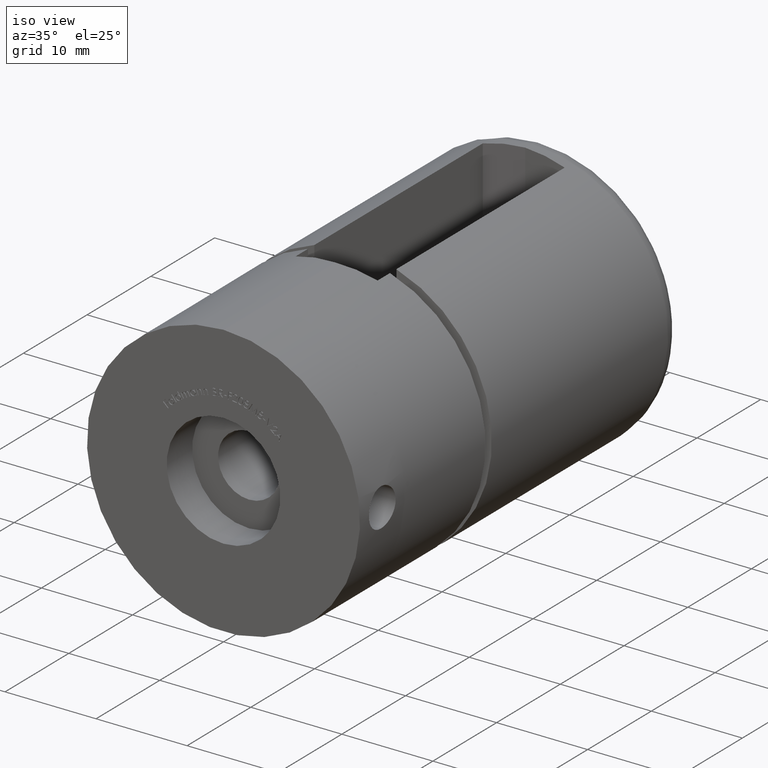
[diagram: clean part render]
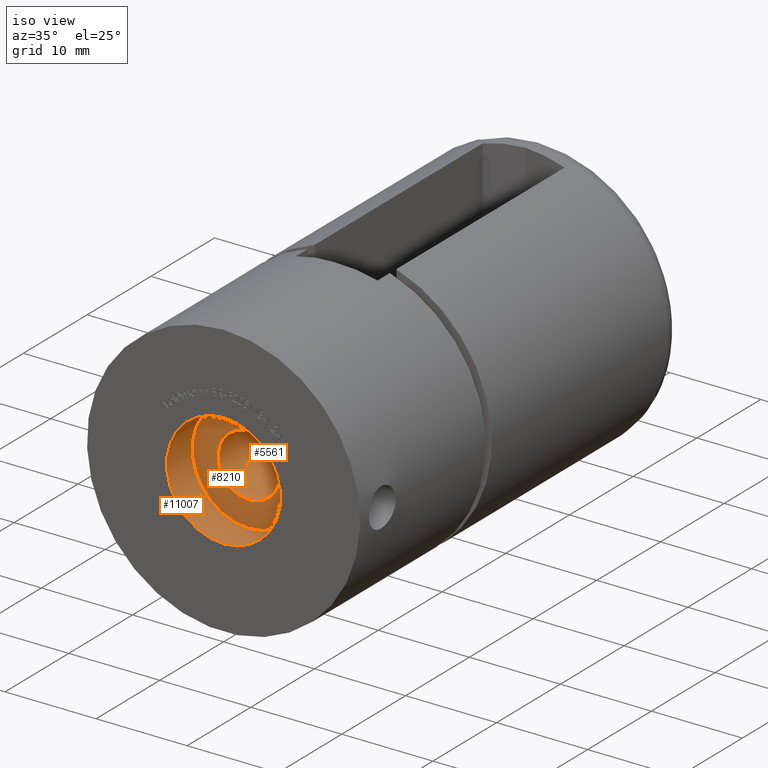
[diagram: same view with one multi-face feature highlighted, each face labeled with its STEP entity id]
A machine part, iso view. The highlighted faces form ONE feature: a stepped (counterbored) hole: 2 coaxial cylindrical walls of radii 3.4 -> 6.25 mm joined by 1 annular planar shoulder face(s). The faces share edges in the B-rep.
Their STEP definitions:
[1] entity #11007 (Cylinder):
#694 = AXIS2_PLACEMENT_3D ( 'NONE', #13521, #5609, #14936 ) ;
#2368 = AXIS2_PLACEMENT_3D ( 'NONE', #14683, #4040, #3928 ) ;
#2776 = CIRCLE ( 'NONE', #2368, 6.250000000000000000 ) ;
#3376 = EDGE_LOOP ( 'NONE', ( #5636 ) ) ;
#3928 = DIRECTION ( 'NONE',  ( 0.0000000000000000000, 0.0000000000000000000, -1.000000000000000000 ) ) ;
#4040 = DIRECTION ( 'NONE',  ( 0.0000000000000000000, -1.000000000000000000, 0.0000000000000000000 ) ) ;
#4477 = CARTESIAN_POINT ( 'NONE',  ( 0.0000000000000000000, 4.000000000000000000, -6.250000000000000000 ) ) ;
#4776 = EDGE_CURVE ( 'NONE', #15974, #15974, #14810, .T. ) ;
#5609 = DIRECTION ( 'NONE',  ( -0.0000000000000000000, -1.000000000000000000, -0.0000000000000000000 ) ) ;
#5636 = ORIENTED_EDGE ( 'NONE', *, *, #4776, .T. ) ;
#6188 = AXIS2_PLACEMENT_3D ( 'NONE', #7470, #10056, #8724 ) ;
#7434 = CYLINDRICAL_SURFACE ( 'NONE', #694, 6.250000000000000000 ) ;
#7470 = CARTESIAN_POINT ( 'NONE',  ( 0.0000000000000000000, 0.0000000000000000000, 0.0000000000000000000 ) ) ;
#7936 = EDGE_LOOP ( 'NONE', ( #16778 ) ) ;
#8724 = DIRECTION ( 'NONE',  ( 0.0000000000000000000, 0.0000000000000000000, -1.000000000000000000 ) ) ;
#9281 = FACE_OUTER_BOUND ( 'NONE', #3376, .T. ) ;
#9496 = FACE_OUTER_BOUND ( 'NONE', #7936, .T. ) ;
#10056 = DIRECTION ( 'NONE',  ( 0.0000000000000000000, -1.000000000000000000, 0.0000000000000000000 ) ) ;
#11007 = ADVANCED_FACE ( 'NONE', ( #9496, #9281 ), #7434, .F. ) ;
#11393 = VERTEX_POINT ( 'NONE', #4477 ) ;
#11572 = EDGE_CURVE ( 'NONE', #11393, #11393, #2776, .T. ) ;
#13521 = CARTESIAN_POINT ( 'NONE',  ( 0.0000000000000000000, 4.000000000000000000, 0.0000000000000000000 ) ) ;
#14683 = CARTESIAN_POINT ( 'NONE',  ( 0.0000000000000000000, 4.000000000000000000, 0.0000000000000000000 ) ) ;
#14810 = CIRCLE ( 'NONE', #6188, 6.250000000000000000 ) ;
#14936 = DIRECTION ( 'NONE',  ( 0.0000000000000000000, 0.0000000000000000000, -1.000000000000000000 ) ) ;
#15060 = CARTESIAN_POINT ( 'NONE',  ( 0.0000000000000000000, 0.0000000000000000000, -6.250000000000000000 ) ) ;
#15974 = VERTEX_POINT ( 'NONE', #15060 ) ;
#16778 = ORIENTED_EDGE ( 'NONE', *, *, #11572, .F. ) ;
[2] entity #5561 (Cylinder):
#120 = DIRECTION ( 'NONE',  ( 0.0000000000000000000, -1.000000000000000000, 0.0000000000000000000 ) ) ;
#382 = CARTESIAN_POINT ( 'NONE',  ( 0.0000000000000000000, 4.000000000000000000, -3.399999999999998600 ) ) ;
#1133 = VERTEX_POINT ( 'NONE', #382 ) ;
#1392 = CARTESIAN_POINT ( 'NONE',  ( 0.0000000000000000000, 13.15000000000000000, 0.0000000000000000000 ) ) ;
#3879 = DIRECTION ( 'NONE',  ( 0.0000000000000000000, 0.0000000000000000000, -1.000000000000000000 ) ) ;
#4239 = DIRECTION ( 'NONE',  ( 0.0000000000000000000, 0.0000000000000000000, -1.000000000000000000 ) ) ;
#4715 = VERTEX_POINT ( 'NONE', #7080 ) ;
#5042 = AXIS2_PLACEMENT_3D ( 'NONE', #7878, #11877, #3879 ) ;
#5561 = ADVANCED_FACE ( 'NONE', ( #5613, #16654 ), #6871, .F. ) ;
#5613 = FACE_OUTER_BOUND ( 'NONE', #8886, .T. ) ;
#5733 = CARTESIAN_POINT ( 'NONE',  ( 0.0000000000000000000, 4.000000000000000000, 0.0000000000000000000 ) ) ;
#6085 = EDGE_LOOP ( 'NONE', ( #14106 ) ) ;
#6871 = CYLINDRICAL_SURFACE ( 'NONE', #5042, 3.399999999999997700 ) ;
#7080 = CARTESIAN_POINT ( 'NONE',  ( 0.0000000000000000000, 13.15000000000000000, 3.399999999999997700 ) ) ;
#7878 = CARTESIAN_POINT ( 'NONE',  ( 0.0000000000000000000, 4.000000000000000000, -0.0000000000000000000 ) ) ;
#8250 = CIRCLE ( 'NONE', #14925, 3.399999999999997700 ) ;
#8886 = EDGE_LOOP ( 'NONE', ( #10090 ) ) ;
#10090 = ORIENTED_EDGE ( 'NONE', *, *, #14353, .T. ) ;
#10669 = CIRCLE ( 'NONE', #13842, 3.399999999999998600 ) ;
#11282 = EDGE_CURVE ( 'NONE', #4715, #4715, #8250, .T. ) ;
#11877 = DIRECTION ( 'NONE',  ( -0.0000000000000000000, -1.000000000000000000, -0.0000000000000000000 ) ) ;
#13842 = AXIS2_PLACEMENT_3D ( 'NONE', #5733, #14996, #4239 ) ;
#14106 = ORIENTED_EDGE ( 'NONE', *, *, #11282, .F. ) ;
#14353 = EDGE_CURVE ( 'NONE', #1133, #1133, #10669, .T. ) ;
#14855 = DIRECTION ( 'NONE',  ( 0.0000000000000000000, 0.0000000000000000000, 1.000000000000000000 ) ) ;
#14925 = AXIS2_PLACEMENT_3D ( 'NONE', #1392, #120, #14855 ) ;
#14996 = DIRECTION ( 'NONE',  ( -0.0000000000000000000, -1.000000000000000000, -0.0000000000000000000 ) ) ;
#16654 = FACE_OUTER_BOUND ( 'NONE', #6085, .T. ) ;
[3] entity #8210 (Plane):
#382 = CARTESIAN_POINT ( 'NONE',  ( 0.0000000000000000000, 4.000000000000000000, -3.399999999999998600 ) ) ;
#764 = DIRECTION ( 'NONE',  ( 0.0000000000000000000, -1.000000000000000000, 0.0000000000000000000 ) ) ;
#1133 = VERTEX_POINT ( 'NONE', #382 ) ;
#1642 = EDGE_LOOP ( 'NONE', ( #8990 ) ) ;
#2368 = AXIS2_PLACEMENT_3D ( 'NONE', #14683, #4040, #3928 ) ;
#2776 = CIRCLE ( 'NONE', #2368, 6.250000000000000000 ) ;
#3361 = FACE_BOUND ( 'NONE', #1642, .T. ) ;
#3928 = DIRECTION ( 'NONE',  ( 0.0000000000000000000, 0.0000000000000000000, -1.000000000000000000 ) ) ;
#4040 = DIRECTION ( 'NONE',  ( 0.0000000000000000000, -1.000000000000000000, 0.0000000000000000000 ) ) ;
#4239 = DIRECTION ( 'NONE',  ( 0.0000000000000000000, 0.0000000000000000000, -1.000000000000000000 ) ) ;
#4477 = CARTESIAN_POINT ( 'NONE',  ( 0.0000000000000000000, 4.000000000000000000, -6.250000000000000000 ) ) ;
#5483 = EDGE_LOOP ( 'NONE', ( #17071 ) ) ;
#5733 = CARTESIAN_POINT ( 'NONE',  ( 0.0000000000000000000, 4.000000000000000000, 0.0000000000000000000 ) ) ;
#7353 = CARTESIAN_POINT ( 'NONE',  ( 0.0000000000000000000, 4.000000000000000000, 0.0000000000000000000 ) ) ;
#8210 = ADVANCED_FACE ( 'NONE', ( #3361, #12754 ), #12665, .T. ) ;
#8990 = ORIENTED_EDGE ( 'NONE', *, *, #14353, .F. ) ;
#9204 = AXIS2_PLACEMENT_3D ( 'NONE', #7353, #764, #11274 ) ;
#10669 = CIRCLE ( 'NONE', #13842, 3.399999999999998600 ) ;
#11274 = DIRECTION ( 'NONE',  ( 0.0000000000000000000, -0.0000000000000000000, -1.000000000000000000 ) ) ;
#11393 = VERTEX_POINT ( 'NONE', #4477 ) ;
#11572 = EDGE_CURVE ( 'NONE', #11393, #11393, #2776, .T. ) ;
#12665 = PLANE ( 'NONE',  #9204 ) ;
#12754 = FACE_OUTER_BOUND ( 'NONE', #5483, .T. ) ;
#13842 = AXIS2_PLACEMENT_3D ( 'NONE', #5733, #14996, #4239 ) ;
#14353 = EDGE_CURVE ( 'NONE', #1133, #1133, #10669, .T. ) ;
#14683 = CARTESIAN_POINT ( 'NONE',  ( 0.0000000000000000000, 4.000000000000000000, 0.0000000000000000000 ) ) ;
#14996 = DIRECTION ( 'NONE',  ( -0.0000000000000000000, -1.000000000000000000, -0.0000000000000000000 ) ) ;
#17071 = ORIENTED_EDGE ( 'NONE', *, *, #11572, .T. ) ;